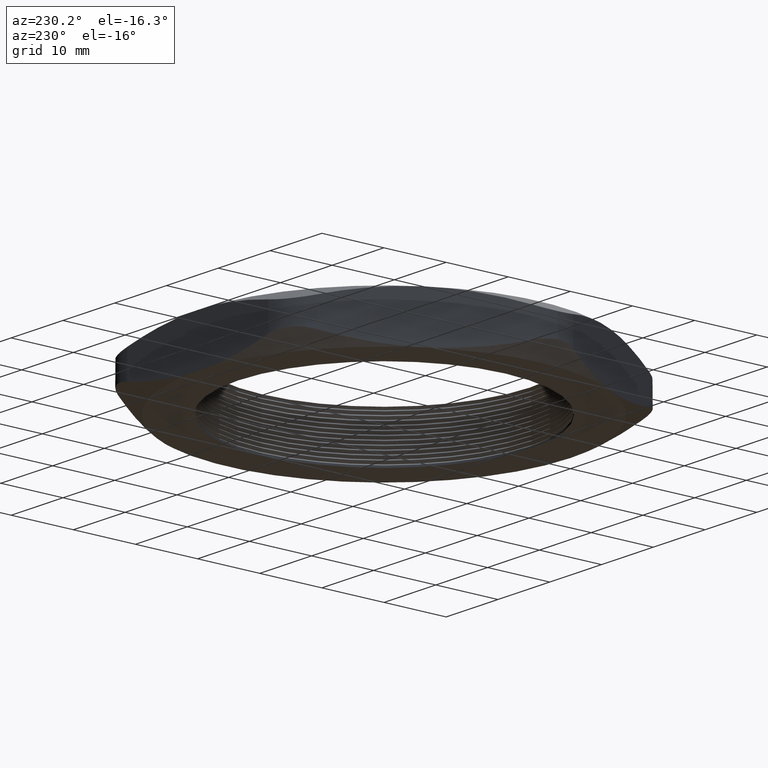
[diagram: clean part render]
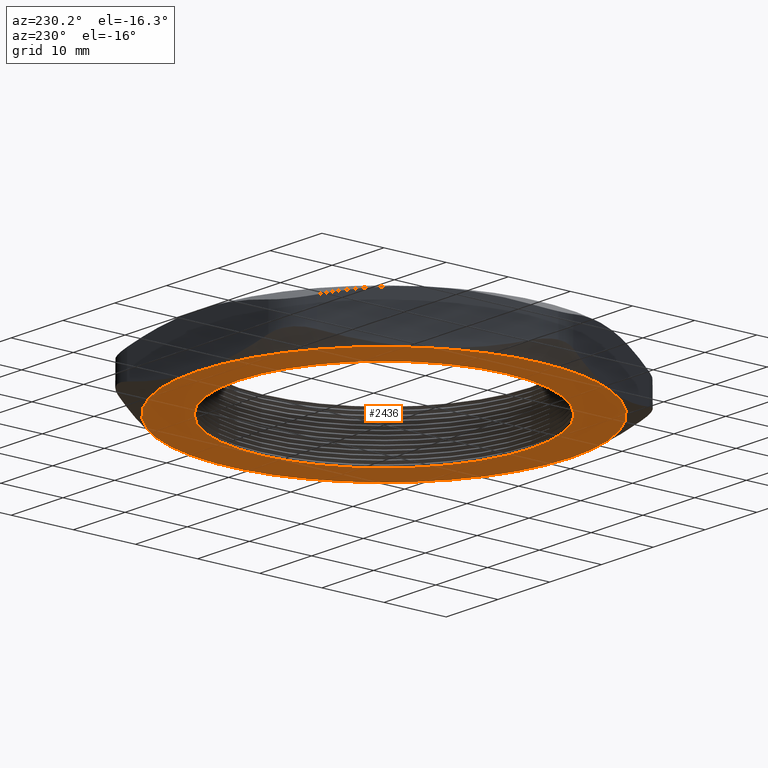
[diagram: same view with one face highlighted and labeled with its STEP entity id]
A machine part, auxiliary view. The second image highlights one B-rep face of the part: STEP entity #2436.
In plain terms, the highlighted planar face has unit normal (0, 0, -1).
Its self-contained STEP definition (entity closure, byte-faithful):
#1263 = DIRECTION ( 'NONE',  ( -1.000000000000000000, 0.0000000000000000000, 0.0000000000000000000 ) ) ;
#1264 = DIRECTION ( 'NONE',  ( 0.0000000000000000000, 0.0000000000000000000, -1.000000000000000000 ) ) ;
#1265 = CARTESIAN_POINT ( 'NONE',  ( 0.0000000000000000000, 0.0000000000000000000, 0.0000000000000000000 ) ) ;
#1266 = AXIS2_PLACEMENT_3D ( 'NONE', #1265, #1264, #1263 ) ;
#1267 = CIRCLE ( 'NONE', #1266, 1.180000000000000200 ) ;
#1269 = DIRECTION ( 'NONE',  ( -1.000000000000000000, 0.0000000000000000000, 0.0000000000000000000 ) ) ;
#1270 = DIRECTION ( 'NONE',  ( 0.0000000000000000000, 0.0000000000000000000, -1.000000000000000000 ) ) ;
#1271 = CARTESIAN_POINT ( 'NONE',  ( 5.463695987328526400E-016, 2.360000000000000800, 0.0000000000000000000 ) ) ;
#1272 = AXIS2_PLACEMENT_3D ( 'NONE', #1271, #1270, #1269 ) ;
#1273 = PLANE ( 'NONE',  #1272 ) ;
#1284 = FACE_OUTER_BOUND ( 'NONE', #2439, .T. ) ;
#1286 = FACE_BOUND ( 'NONE', #2430, .T. ) ;
#1322 = CARTESIAN_POINT ( 'NONE',  ( 2.365849761790802000E-016, -1.180000000000000200, 0.0000000000000000000 ) ) ;
#1415 = DIRECTION ( 'NONE',  ( 1.000000000000000000, 0.0000000000000000000, 0.0000000000000000000 ) ) ;
#1416 = DIRECTION ( 'NONE',  ( 0.0000000000000000000, 0.0000000000000000000, 1.000000000000000000 ) ) ;
#1417 = CARTESIAN_POINT ( 'NONE',  ( 0.0000000000000000000, 0.0000000000000000000, 0.0000000000000000000 ) ) ;
#1418 = AXIS2_PLACEMENT_3D ( 'NONE', #1417, #1416, #1415 ) ;
#1419 = CIRCLE ( 'NONE', #1418, 0.9250000000000002700 ) ;
#1535 = CARTESIAN_POINT ( 'NONE',  ( -1.021909976465638100, -0.5899999999999997500, 0.0000000000000000000 ) ) ;
#1556 = CARTESIAN_POINT ( 'NONE',  ( 1.021909976465637900, 0.5899999999999999700, 0.0000000000000000000 ) ) ;
#1559 = DIRECTION ( 'NONE',  ( -1.000000000000000000, 0.0000000000000000000, 0.0000000000000000000 ) ) ;
#1560 = DIRECTION ( 'NONE',  ( 0.0000000000000000000, 0.0000000000000000000, -1.000000000000000000 ) ) ;
#1561 = CARTESIAN_POINT ( 'NONE',  ( 0.0000000000000000000, 0.0000000000000000000, 0.0000000000000000000 ) ) ;
#1562 = AXIS2_PLACEMENT_3D ( 'NONE', #1561, #1560, #1559 ) ;
#1563 = CIRCLE ( 'NONE', #1562, 1.180000000000000200 ) ;
#1564 = DIRECTION ( 'NONE',  ( -1.000000000000000000, 0.0000000000000000000, 0.0000000000000000000 ) ) ;
#1565 = DIRECTION ( 'NONE',  ( 0.0000000000000000000, 0.0000000000000000000, -1.000000000000000000 ) ) ;
#1566 = CARTESIAN_POINT ( 'NONE',  ( 0.0000000000000000000, 0.0000000000000000000, 0.0000000000000000000 ) ) ;
#1567 = AXIS2_PLACEMENT_3D ( 'NONE', #1566, #1565, #1564 ) ;
#1568 = CIRCLE ( 'NONE', #1567, 1.180000000000000200 ) ;
#1604 = CARTESIAN_POINT ( 'NONE',  ( -1.182924880895401000E-016, 1.180000000000000200, 0.0000000000000000000 ) ) ;
#1659 = CARTESIAN_POINT ( 'NONE',  ( -1.021909976465637900, 0.5900000000000001900, 0.0000000000000000000 ) ) ;
#1660 = CARTESIAN_POINT ( 'NONE',  ( -1.180000000000000200, 0.0000000000000000000, 0.0000000000000000000 ) ) ;
#1661 = DIRECTION ( 'NONE',  ( -1.000000000000000000, 0.0000000000000000000, 0.0000000000000000000 ) ) ;
#1662 = DIRECTION ( 'NONE',  ( 0.0000000000000000000, 0.0000000000000000000, -1.000000000000000000 ) ) ;
#1663 = CARTESIAN_POINT ( 'NONE',  ( 0.0000000000000000000, 0.0000000000000000000, 0.0000000000000000000 ) ) ;
#1664 = AXIS2_PLACEMENT_3D ( 'NONE', #1663, #1662, #1661 ) ;
#1665 = CIRCLE ( 'NONE', #1664, 1.180000000000000200 ) ;
#1756 = CARTESIAN_POINT ( 'NONE',  ( -0.9250000000000002700, 0.0000000000000000000, 0.0000000000000000000 ) ) ;
#1757 = DIRECTION ( 'NONE',  ( 1.000000000000000000, 0.0000000000000000000, 0.0000000000000000000 ) ) ;
#1758 = DIRECTION ( 'NONE',  ( 0.0000000000000000000, 0.0000000000000000000, 1.000000000000000000 ) ) ;
#1759 = CARTESIAN_POINT ( 'NONE',  ( 0.0000000000000000000, 0.0000000000000000000, 0.0000000000000000000 ) ) ;
#1760 = AXIS2_PLACEMENT_3D ( 'NONE', #1759, #1758, #1757 ) ;
#1761 = CIRCLE ( 'NONE', #1760, 0.9250000000000002700 ) ;
#1762 = CARTESIAN_POINT ( 'NONE',  ( 0.9250000000000002700, 1.132798289211302000E-016, 0.0000000000000000000 ) ) ;
#1833 = CARTESIAN_POINT ( 'NONE',  ( 1.021909976465637600, -0.5900000000000003000, 0.0000000000000000000 ) ) ;
#1891 = CIRCLE ( 'NONE', #1950, 1.180000000000000200 ) ;
#1942 = DIRECTION ( 'NONE',  ( -1.000000000000000000, 0.0000000000000000000, 0.0000000000000000000 ) ) ;
#1943 = DIRECTION ( 'NONE',  ( 0.0000000000000000000, 0.0000000000000000000, -1.000000000000000000 ) ) ;
#1944 = CARTESIAN_POINT ( 'NONE',  ( 0.0000000000000000000, 0.0000000000000000000, 0.0000000000000000000 ) ) ;
#1945 = AXIS2_PLACEMENT_3D ( 'NONE', #1944, #1943, #1942 ) ;
#1946 = CIRCLE ( 'NONE', #1945, 1.180000000000000200 ) ;
#1947 = DIRECTION ( 'NONE',  ( -1.000000000000000000, 0.0000000000000000000, 0.0000000000000000000 ) ) ;
#1948 = DIRECTION ( 'NONE',  ( 0.0000000000000000000, 0.0000000000000000000, -1.000000000000000000 ) ) ;
#1949 = CARTESIAN_POINT ( 'NONE',  ( 0.0000000000000000000, 0.0000000000000000000, 0.0000000000000000000 ) ) ;
#1950 = AXIS2_PLACEMENT_3D ( 'NONE', #1949, #1948, #1947 ) ;
#2084 = DIRECTION ( 'NONE',  ( -1.000000000000000000, 0.0000000000000000000, 0.0000000000000000000 ) ) ;
#2085 = DIRECTION ( 'NONE',  ( 0.0000000000000000000, 0.0000000000000000000, -1.000000000000000000 ) ) ;
#2086 = AXIS2_PLACEMENT_3D ( 'NONE', #2092, #2085, #2084 ) ;
#2087 = CIRCLE ( 'NONE', #2086, 1.180000000000000200 ) ;
#2092 = CARTESIAN_POINT ( 'NONE',  ( 0.0000000000000000000, 0.0000000000000000000, 0.0000000000000000000 ) ) ;
#2430 = EDGE_LOOP ( 'NONE', ( #2437, #2438 ) ) ;
#2436 = ADVANCED_FACE ( 'NONE', ( #1286, #1284 ), #1273, .T. ) ;
#2437 = ORIENTED_EDGE ( 'NONE', *, *, #2654, .T. ) ;
#2438 = ORIENTED_EDGE ( 'NONE', *, *, #2508, .T. ) ;
#2439 = EDGE_LOOP ( 'NONE', ( #2440, #2561, #2562, #2564, #2737, #2738, #2814 ) ) ;
#2440 = ORIENTED_EDGE ( 'NONE', *, *, #2441, .T. ) ;
#2441 = EDGE_CURVE ( 'NONE', #2552, #2602, #1267, .T. ) ;
#2445 = VERTEX_POINT ( 'NONE', #1322 ) ;
#2508 = EDGE_CURVE ( 'NONE', #2652, #2655, #1419, .T. ) ;
#2552 = VERTEX_POINT ( 'NONE', #1535 ) ;
#2561 = ORIENTED_EDGE ( 'NONE', *, *, #2601, .T. ) ;
#2562 = ORIENTED_EDGE ( 'NONE', *, *, #2563, .T. ) ;
#2563 = EDGE_CURVE ( 'NONE', #2603, #2575, #1568, .T. ) ;
#2564 = ORIENTED_EDGE ( 'NONE', *, *, #2565, .T. ) ;
#2565 = EDGE_CURVE ( 'NONE', #2575, #2568, #1563, .T. ) ;
#2568 = VERTEX_POINT ( 'NONE', #1556 ) ;
#2575 = VERTEX_POINT ( 'NONE', #1604 ) ;
#2601 = EDGE_CURVE ( 'NONE', #2602, #2603, #1665, .T. ) ;
#2602 = VERTEX_POINT ( 'NONE', #1660 ) ;
#2603 = VERTEX_POINT ( 'NONE', #1659 ) ;
#2652 = VERTEX_POINT ( 'NONE', #1762 ) ;
#2654 = EDGE_CURVE ( 'NONE', #2655, #2652, #1761, .T. ) ;
#2655 = VERTEX_POINT ( 'NONE', #1756 ) ;
#2702 = VERTEX_POINT ( 'NONE', #1833 ) ;
#2736 = EDGE_CURVE ( 'NONE', #2568, #2702, #1891, .T. ) ;
#2737 = ORIENTED_EDGE ( 'NONE', *, *, #2736, .T. ) ;
#2738 = ORIENTED_EDGE ( 'NONE', *, *, #2739, .T. ) ;
#2739 = EDGE_CURVE ( 'NONE', #2702, #2445, #1946, .T. ) ;
#2814 = ORIENTED_EDGE ( 'NONE', *, *, #2815, .T. ) ;
#2815 = EDGE_CURVE ( 'NONE', #2445, #2552, #2087, .T. ) ;